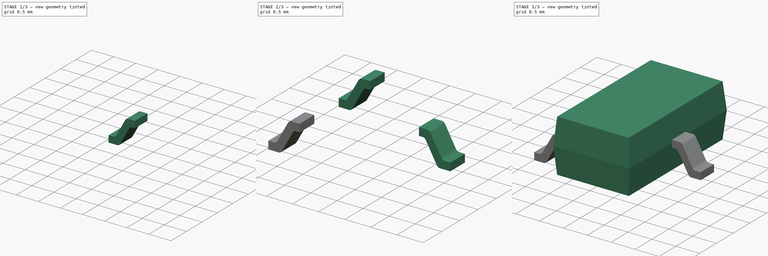
[diagram: build sequence overview — one tinted view per stage of 3, left to right]
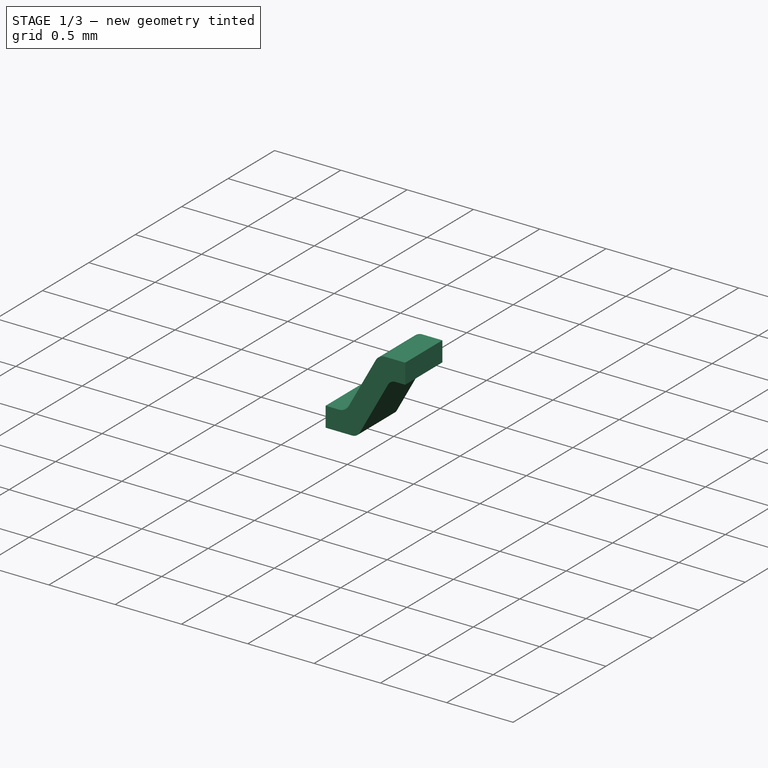
[diagram: stage 1 of 3 — iso view after this stage's code; geometry added in this stage tinted green]
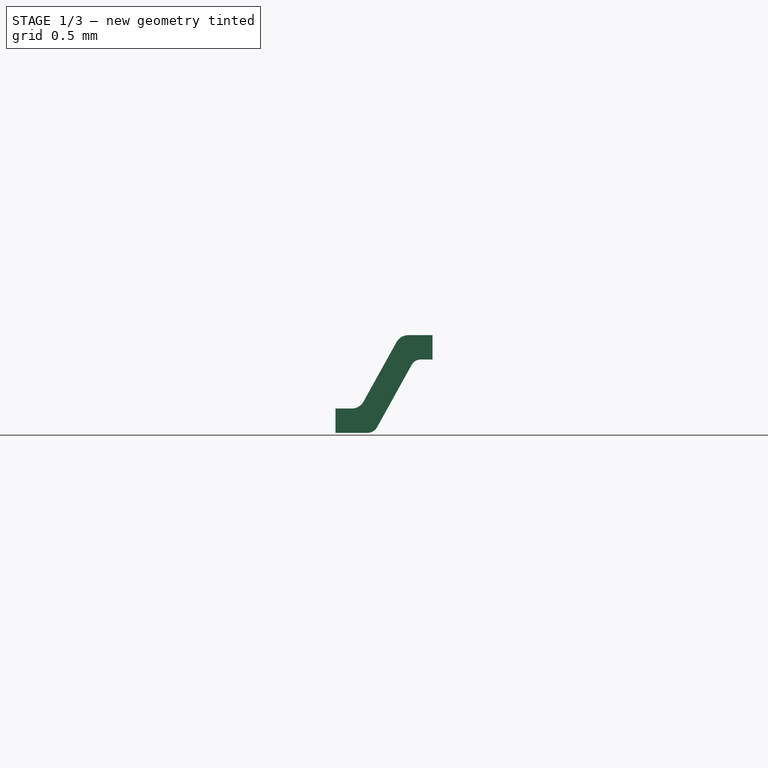
[diagram: stage 1 of 3 — front view after this stage's code; geometry added in this stage tinted green]
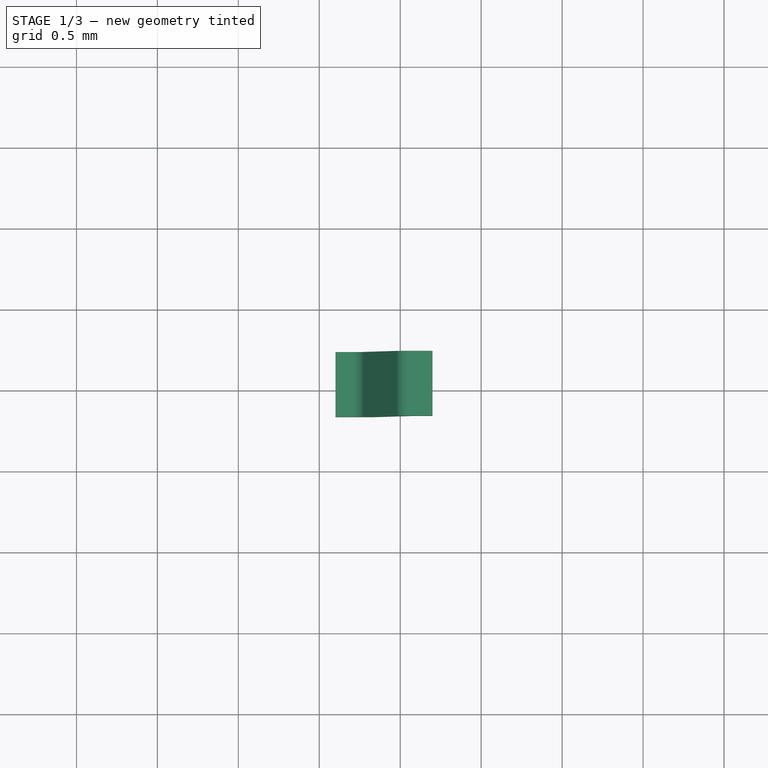
[diagram: stage 1 of 3 — top view after this stage's code; geometry added in this stage tinted green]
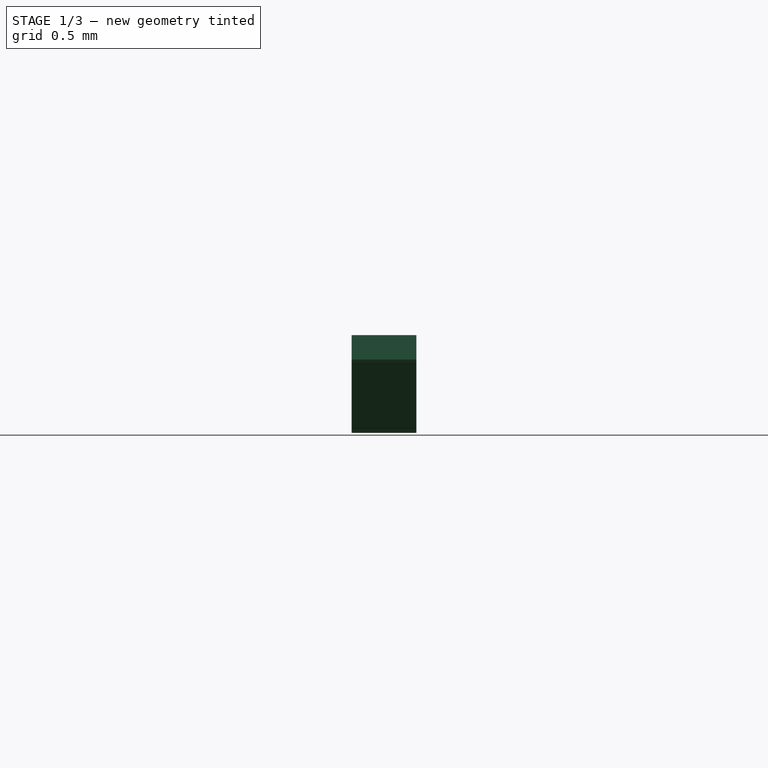
[diagram: stage 1 of 3 — right view after this stage's code; geometry added in this stage tinted green]
FCSTD DOCUMENT  (FreeCAD 0.16R6703 (Git))
Label: SOT23-3
License: All rights reserved
LicenseURL: http://en.wikipedia.org/wiki/All_rights_reserved
objects: Sketcher::SketchObject×4, Part::FeaturePython×3, App::DocumentObjectGroup×2, Part::Loft×1, PartDesign::Pad×1, Part::Mirroring×1, Part::MultiFuse×1
note: 12 computed .brp shape members not serialized (recipe doc carries the construction recipe); baked Part::Feature solids carry a one-line shape summary decoded from their .brp

FEATURE [Sketcher::SketchObject] Sketch003  label="pin-ketch"
  Placement = pos=(-1.39999,0.962147,-0.019776) rot=(-1,0,0;4.71239rad)
  sketch-geometry (20):
    g0: LineSegment StartX=0 StartY=0.15 StartZ=0 EndX=0 EndY=0 EndZ=0
    g1: LineSegment StartX=0 StartY=0.15 StartZ=0 EndX=0.1 EndY=0.15 EndZ=0
    g2: LineSegment StartX=0 StartY=0 StartZ=0 EndX=0.197781 EndY=0 EndZ=0
    g3: LineSegment [constr] StartX=0.1 StartY=0.234 StartZ=0 EndX=0.1 EndY=0.15 EndZ=0
    g4: LineSegment StartX=0.173468 StartY=0.193276 StartZ=0 EndX=0.377088 EndY=0.560616 EndZ=0
    g5: LineSegment [constr] StartX=0.1 StartY=0.234 StartZ=0 EndX=0.173468 EndY=0.193276 EndZ=0
    g6: ArcOfCircle CenterX=0.1 CenterY=0.234 CenterZ=0 NormalX=0 NormalY=0 NormalZ=1 Radius=0.084 StartAngle=4.71239 EndAngle=5.77704
    g7: LineSegment StartX=0.257256 StartY=0.0350329 StartZ=0 EndX=0.470572 EndY=0.419866 EndZ=0
    g8: LineSegment [constr] StartX=0.339379 StartY=0.492587 StartZ=0 EndX=0.470572 EndY=0.419866 EndZ=0
    g9: LineSegment [constr] StartX=0.197781 StartY=0 StartZ=0 EndX=0.197781 EndY=0.068 EndZ=0
    g10: LineSegment [constr] StartX=0.197781 StartY=0.068 StartZ=0 EndX=0.257256 EndY=0.0350329 EndZ=0
    g11: ArcOfCircle CenterX=0.197781 CenterY=0.068 CenterZ=0 NormalX=0 NormalY=0 NormalZ=1 Radius=0.068 StartAngle=4.71239 EndAngle=5.77704
    g12: LineSegment [constr] StartX=0.449682 StartY=0.603377 StartZ=0 EndX=0.449682 EndY=0.520377 EndZ=0
    g13: LineSegment [constr] StartX=0.377088 StartY=0.560616 StartZ=0 EndX=0.449682 EndY=0.520377 EndZ=0
    g14: ArcOfCircle CenterX=0.449682 CenterY=0.520377 CenterZ=0 NormalX=0 NormalY=0 NormalZ=1 Radius=0.083 StartAngle=1.5708 EndAngle=2.63545
    g15: LineSegment [constr] StartX=0.526548 StartY=0.452838 StartZ=0 EndX=0.526548 EndY=0.388838 EndZ=0
    g16: ArcOfCircle CenterX=0.526548 CenterY=0.388838 CenterZ=0 NormalX=0 NormalY=0 NormalZ=1 Radius=0.064 StartAngle=1.5708 EndAngle=2.63545
    g17: LineSegment StartX=0.449682 StartY=0.603377 StartZ=0 EndX=0.599682 EndY=0.603377 EndZ=0
    g18: LineSegment StartX=0.599682 StartY=0.603377 StartZ=0 EndX=0.599682 EndY=0.452838 EndZ=0
    g19: LineSegment StartX=0.599682 StartY=0.452838 StartZ=0 EndX=0.526548 EndY=0.452838 EndZ=0
  constraints (56):
    c: Vertical(g0)
    c: DistanceY(g0,g0) = 0.15
    c: Coincident(g1,g0)
    c: Horizontal(g1)
    c: Coincident(g2,g0)
    c: Horizontal(g2)
    c: Vertical(g3)
    c: Coincident(g3,g1)
    c: Angle(g4,g-1) = 2.07694
    c: Coincident(g5,g3)
    c: Coincident(g5,g4)
    c: Perpendicular(g4,g5)
    c: DistanceX(g1,g1) = 0.1
    c: Coincident(g6,g3)
    c: Coincident(g6,g1)
    c: Coincident(g6,g4)
    c: Parallel(g7,g4)
    c: Coincident(g8,g7)
    c: Perpendicular(g7,g8)
    c: PointOnObject(g8,g4)
    c: Equal(g0,g8)
    c: Radius(g6) = 0.084
    c: Vertical(g9)
    c: Coincident(g9,g2)
    c: Coincident(g10,g9)
    c: Coincident(g10,g7)
    c: Perpendicular(g7,g10)
    c: Coincident(g11,g9)
    c: Coincident(g11,g2)
    c: Coincident(g11,g7)
    c: Radius(g11) = 0.068
    c: Vertical(g12)
    c: Coincident(g13,g12)
    c: Coincident(g13,g4)
    c: Perpendicular(g4,g13)
    c: Coincident(g14,g12)
    c: Coincident(g14,g4)
    c: Coincident(g14,g12)
    c: Radius(g14) = 0.083
    c: Distance(g4) = 0.42
    c: Vertical(g15)
    c: PointOnObject(g15,g8)
    c: Coincident(g16,g15)
    c: Coincident(g16,g15)
    c: Coincident(g16,g7)
    c: Radius(g16) = 0.064
    c: Distance(g7) = 0.44
    c: Horizontal(g17)
    c: Coincident(g17,g18)
    c: Vertical(g18)
    c: Coincident(g18,g19)
    c: Coincident(g19,g15)
    c: Horizontal(g19)
    c: Coincident(g17,g12)
    c: DistanceX(g17,g17) = 0.15
    c: Coincident(g0,g-1)
FEATURE [PartDesign::Pad] Pad  label="Pad1-src"
  Length = 0.4
  Length2 = 100
  Midplane = true
  Placement = pos=(-1.39999,0.962147,-0.019776) rot=(-1,0,0;4.71239rad)
  Sketch = -> Sketch003
  Type = 0
FEATURE [Part::Mirroring] Part__Mirroring  label="Pad1-src (Mirror #1)"
  Base = (0,0,0)
  Normal = (0,1,0)
  Source = -> Pad
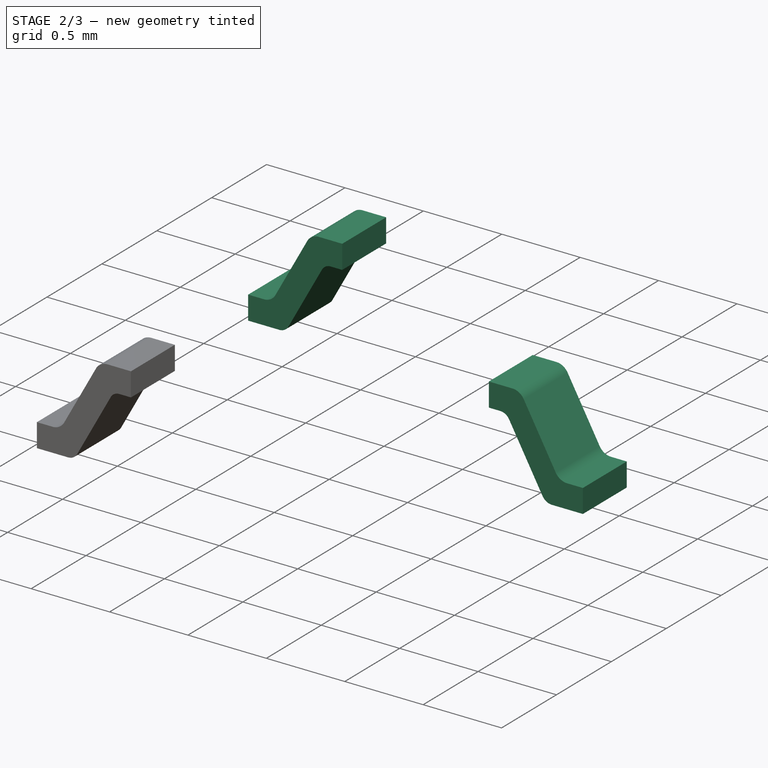
[diagram: stage 2 of 3 — iso view after this stage's code; geometry added in this stage tinted green]
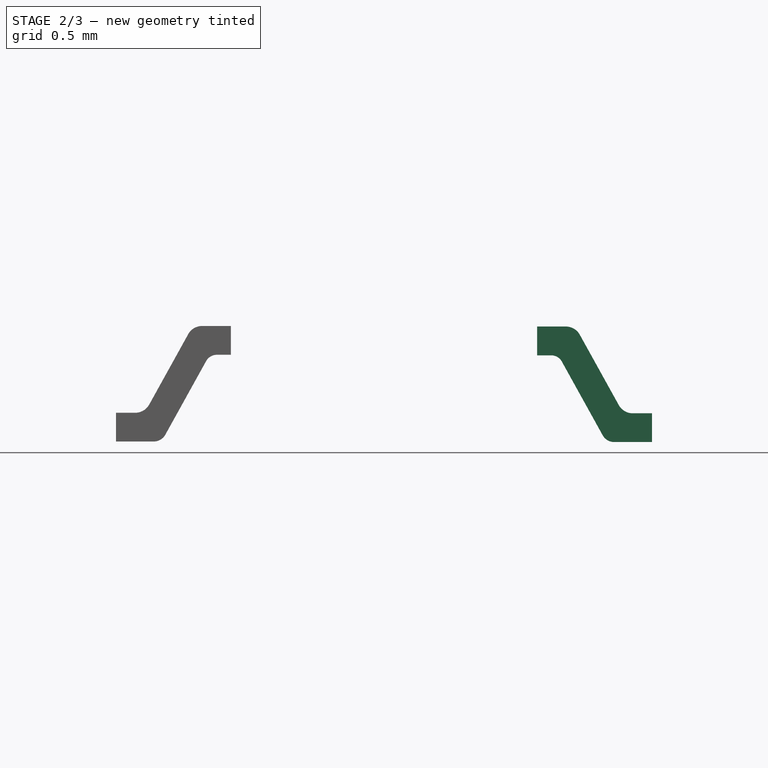
[diagram: stage 2 of 3 — front view after this stage's code; geometry added in this stage tinted green]
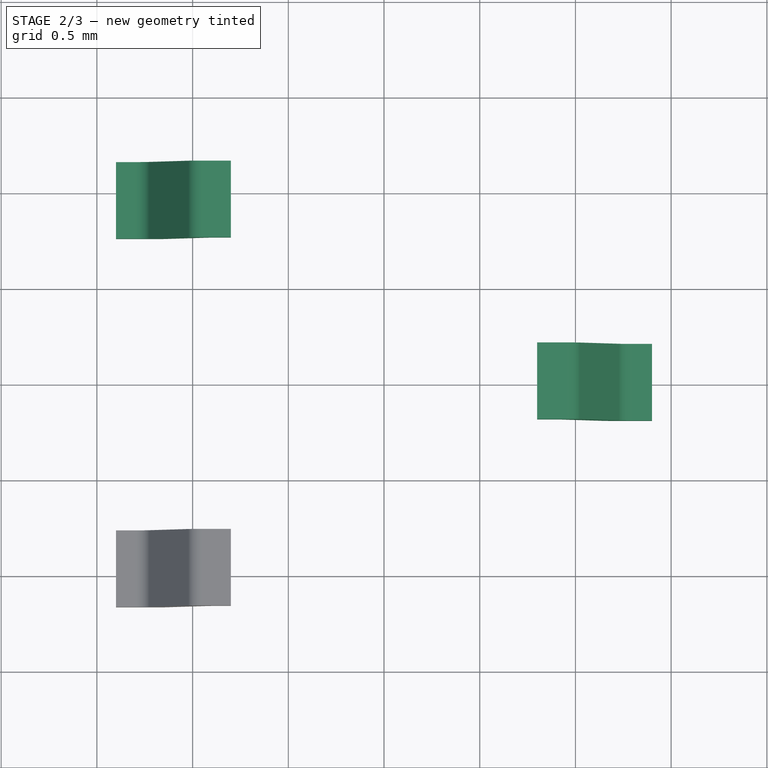
[diagram: stage 2 of 3 — top view after this stage's code; geometry added in this stage tinted green]
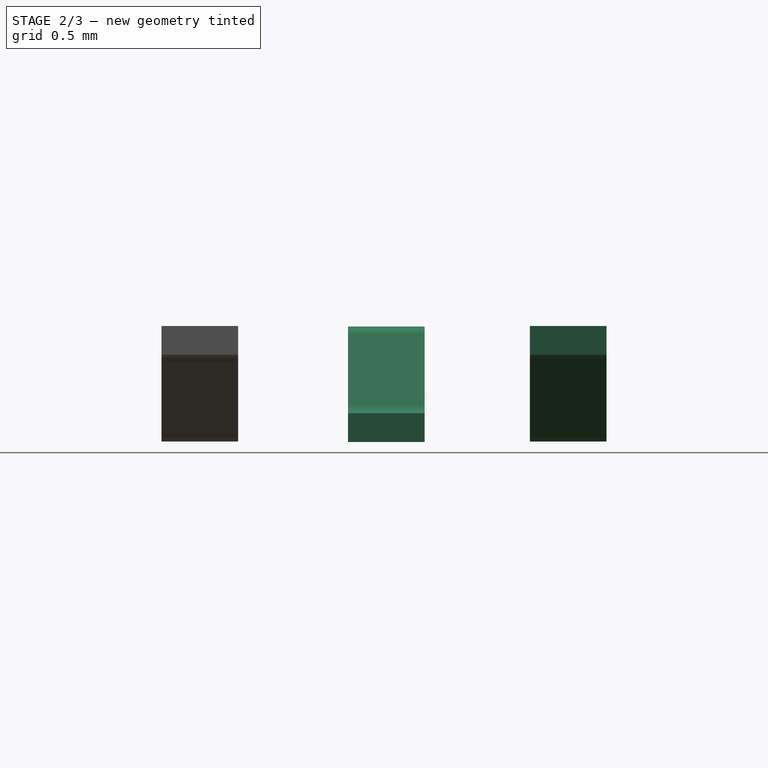
[diagram: stage 2 of 3 — right view after this stage's code; geometry added in this stage tinted green]
FEATURE [Part::FeaturePython] Clone001  label="pad3"  # Draft clone (typed FeaturePython)
  Objects = -> [Pad]
  Placement = pos=(1.39969,0.0121473,-0.0226139) rot=(0,-0.707107,-0.707107;3.14159rad)
  Scale = (1,1,1)
FEATURE [Part::MultiFuse] Fusion  label="pads-src"
  Shapes = -> [Pad,Part__Mirroring,Clone001]
FEATURE [App::DocumentObjectGroup] Group  label="src"
  Group = -> [Group001,Fusion]
FEATURE [Part::FeaturePython] Clone002  label="pads"  # Draft clone (typed FeaturePython)
  Objects = -> [Fusion]
  Scale = (1,1,1)
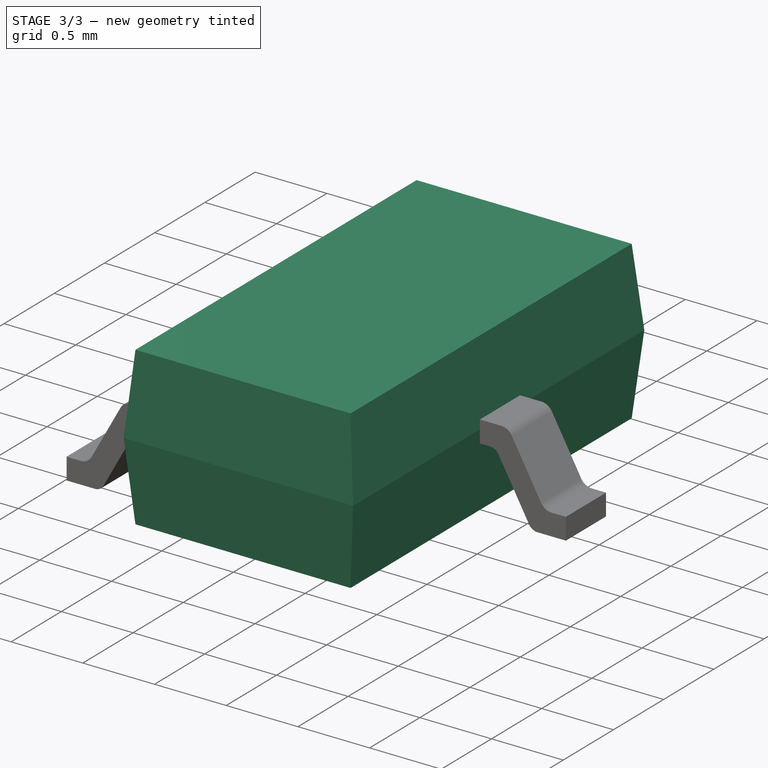
[diagram: stage 3 of 3 — iso view after this stage's code; geometry added in this stage tinted green]
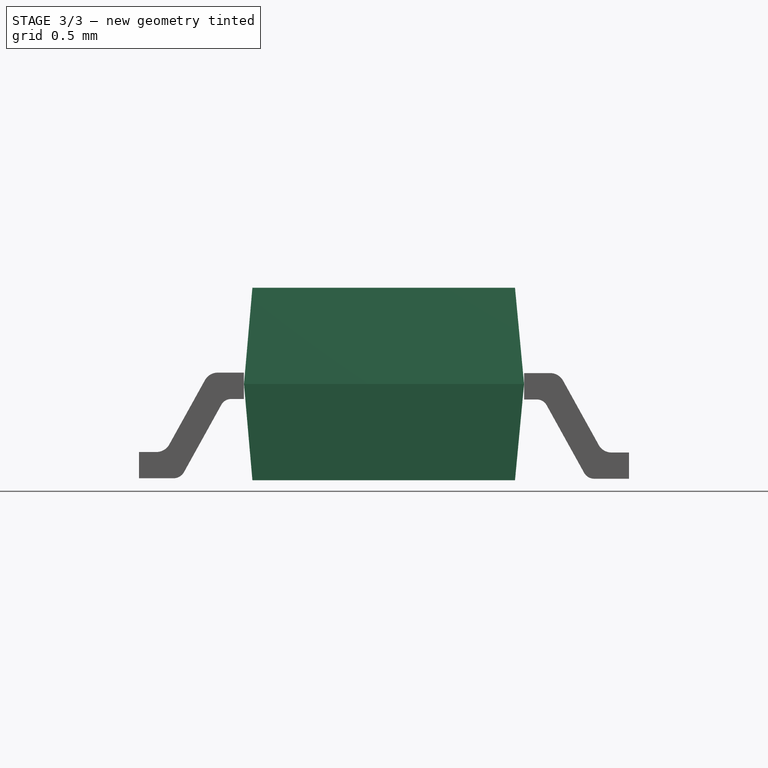
[diagram: stage 3 of 3 — front view after this stage's code; geometry added in this stage tinted green]
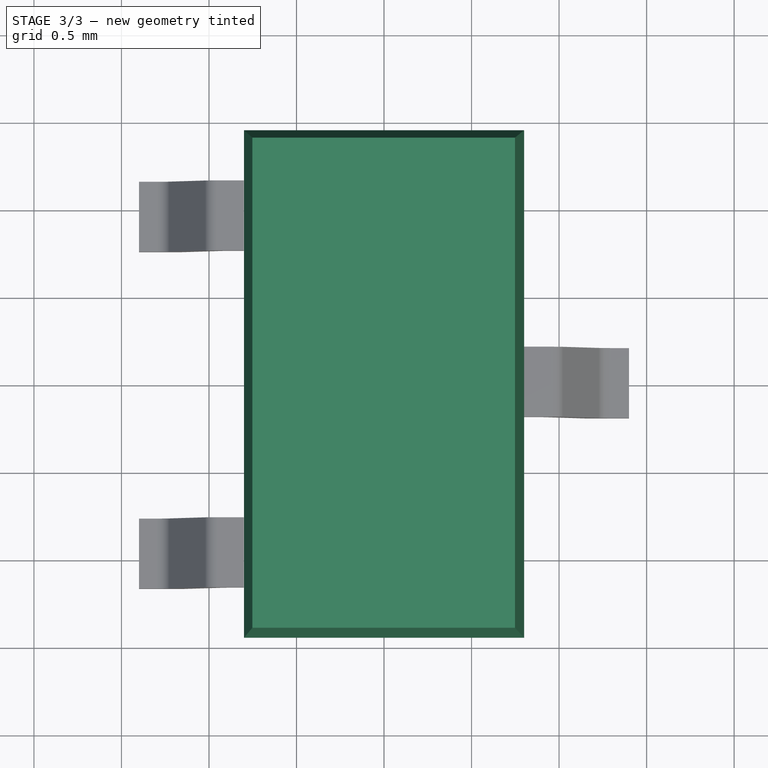
[diagram: stage 3 of 3 — top view after this stage's code; geometry added in this stage tinted green]
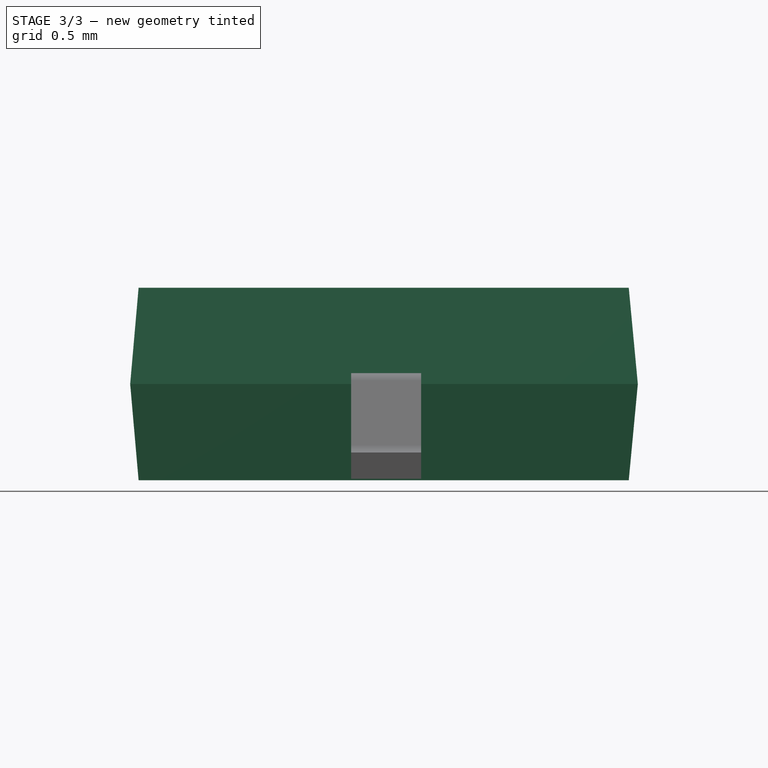
[diagram: stage 3 of 3 — right view after this stage's code; geometry added in this stage tinted green]
FEATURE [Sketcher::SketchObject] Sketch  label="bottom-sketch"
  Placement = pos=(-0.0018812,-0.00188127,-0.031318) rot=(0,0,1;0rad)
  sketch-geometry (4):
    g0: LineSegment StartX=-0.75 StartY=1.4 StartZ=0 EndX=0.75 EndY=1.4 EndZ=0
    g1: LineSegment StartX=0.75 StartY=1.4 StartZ=0 EndX=0.75 EndY=-1.4 EndZ=0
    g2: LineSegment StartX=0.75 StartY=-1.4 StartZ=0 EndX=-0.75 EndY=-1.4 EndZ=0
    g3: LineSegment StartX=-0.75 StartY=-1.4 StartZ=0 EndX=-0.75 EndY=1.4 EndZ=0
  constraints (11):
    c: Coincident(g0,g1)
    c: Coincident(g1,g2)
    c: Coincident(g2,g3)
    c: Coincident(g3,g0)
    c: Horizontal(g0)
    c: Horizontal(g2)
    c: Vertical(g1)
    c: Vertical(g3)
    c: Symmetric(g0,g1,g-1)
    c: DistanceX(g0,g0) = 1.5
    c: DistanceY(g1,g1) = 2.8
FEATURE [Sketcher::SketchObject] Sketch001  label="top-sketch"
  Placement = pos=(-0.00188115,-0.00188127,1.06868) rot=(0,0,1;0rad)
  sketch-geometry (4):
    g0: LineSegment StartX=-0.75 StartY=1.4 StartZ=0 EndX=0.75 EndY=1.4 EndZ=0
    g1: LineSegment StartX=0.75 StartY=1.4 StartZ=0 EndX=0.75 EndY=-1.4 EndZ=0
    g2: LineSegment StartX=0.75 StartY=-1.4 StartZ=0 EndX=-0.75 EndY=-1.4 EndZ=0
    g3: LineSegment StartX=-0.75 StartY=-1.4 StartZ=0 EndX=-0.75 EndY=1.4 EndZ=0
  constraints (11):
    c: Coincident(g0,g1)
    c: Coincident(g1,g2)
    c: Coincident(g2,g3)
    c: Coincident(g3,g0)
    c: Horizontal(g0)
    c: Horizontal(g2)
    c: Vertical(g1)
    c: Vertical(g3)
    c: Symmetric(g0,g1,g-1)
    c: DistanceX(g0,g0) = 1.5
    c: DistanceY(g1,g1) = 2.8
FEATURE [Sketcher::SketchObject] Sketch002  label="middle-sketch"
  Placement = pos=(6.3386e-08,-3.4966e-08,0.518682) rot=(0,0,1;0rad)
  sketch-geometry (4):
    g0: LineSegment StartX=-0.8 StartY=1.45 StartZ=0 EndX=0.8 EndY=1.45 EndZ=0
    g1: LineSegment StartX=0.8 StartY=1.45 StartZ=0 EndX=0.8 EndY=-1.45 EndZ=0
    g2: LineSegment StartX=0.8 StartY=-1.45 StartZ=0 EndX=-0.8 EndY=-1.45 EndZ=0
    g3: LineSegment StartX=-0.8 StartY=-1.45 StartZ=0 EndX=-0.8 EndY=1.45 EndZ=0
  constraints (11):
    c: Coincident(g0,g1)
    c: Coincident(g1,g2)
    c: Coincident(g2,g3)
    c: Coincident(g3,g0)
    c: Horizontal(g0)
    c: Horizontal(g2)
    c: Vertical(g1)
    c: Vertical(g3)
    c: Symmetric(g0,g1,g-1)
    c: DistanceX(g0,g0) = 1.6
    c: DistanceY(g1,g1) = 2.9
FEATURE [Part::Loft] Loft
  Closed = false
  Ruled = true
  Sections = -> [Sketch,Sketch002,Sketch001]
  Solid = true
FEATURE [App::DocumentObjectGroup] Group001  label="body-src"
  Group = -> [Loft]
FEATURE [Part::FeaturePython] Clone  label="body"  # Draft clone (typed FeaturePython)
  Objects = -> [Loft]
  Scale = (1,1,1)
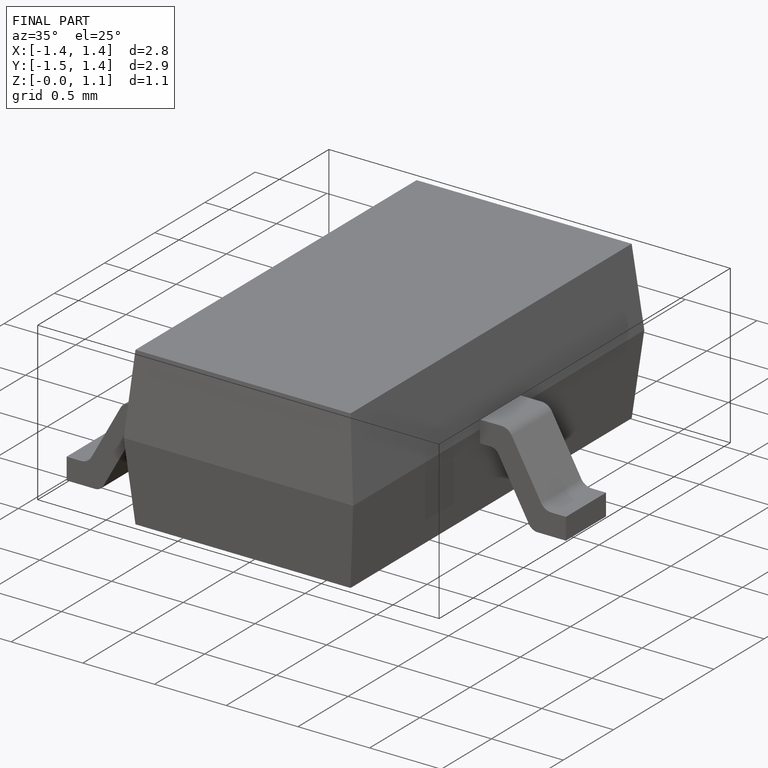
[diagram: finished part — iso view with bounding-box wireframe]
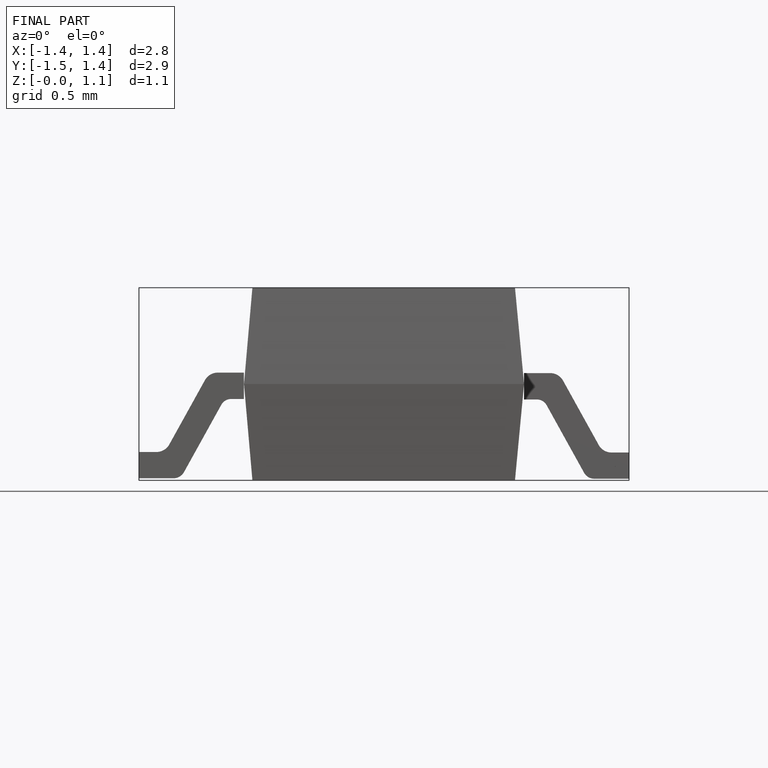
[diagram: finished part — front view with bounding-box wireframe]
